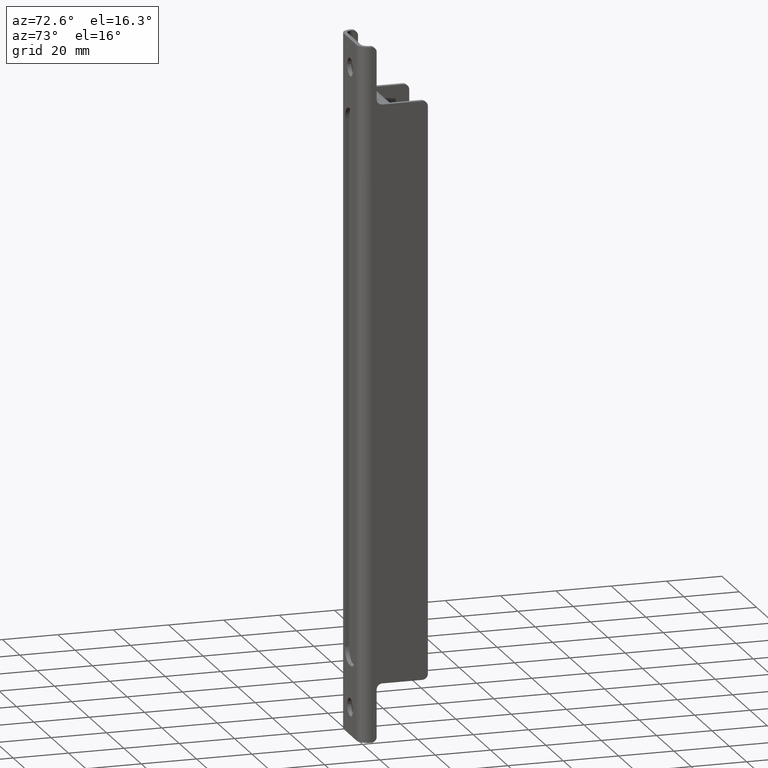
[diagram: clean part render]
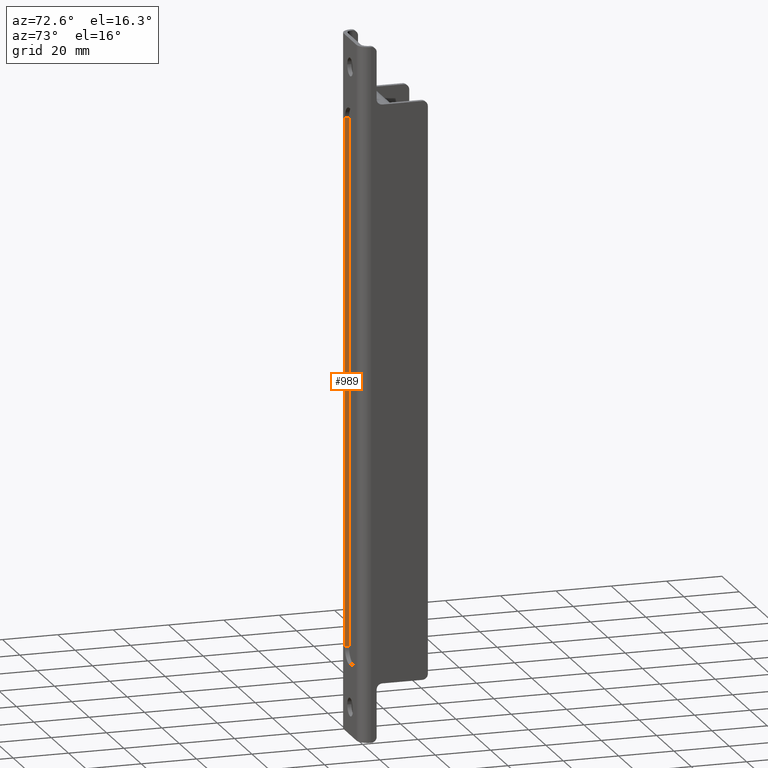
[diagram: same view with one face highlighted and labeled with its STEP entity id]
A machine part, auxiliary view. The second image highlights one B-rep face of the part: STEP entity #989.
In plain terms, the highlighted planar face has unit normal (-1, 0, -0).
Its self-contained STEP definition (entity closure, byte-faithful):
#214=ORIENTED_EDGE('',*,*,#410,.T.);
#215=ORIENTED_EDGE('',*,*,#476,.T.);
#216=ORIENTED_EDGE('',*,*,#392,.T.);
#217=ORIENTED_EDGE('',*,*,#477,.T.);
#392=EDGE_CURVE('',#536,#537,#632,.T.);
#410=EDGE_CURVE('',#555,#554,#642,.T.);
#476=EDGE_CURVE('',#554,#536,#678,.T.);
#477=EDGE_CURVE('',#537,#555,#679,.T.);
#536=VERTEX_POINT('',#1475);
#537=VERTEX_POINT('',#1476);
#554=VERTEX_POINT('',#1512);
#555=VERTEX_POINT('',#1514);
#632=LINE('',#1474,#720);
#642=LINE('',#1513,#730);
#678=LINE('',#1644,#766);
#679=LINE('',#1645,#767);
#720=VECTOR('',#1160,1000.);
#730=VECTOR('',#1190,1000.);
#766=VECTOR('',#1314,1000.);
#767=VECTOR('',#1315,1000.);
#833=EDGE_LOOP('',(#214,#215,#216,#217));
#901=FACE_BOUND('',#833,.T.);
#954=PLANE('',#1097);
#989=ADVANCED_FACE('',(#901),#954,.F.);
#1097=AXIS2_PLACEMENT_3D('',#1643,#1312,#1313);
#1160=DIRECTION('',(-8.93686180177302E-17,-1.66533453693773E-16,1.));
#1190=DIRECTION('',(8.93686180177302E-17,1.66533453693773E-16,-1.));
#1312=DIRECTION('',(-1.,4.06163832661068E-16,-8.93686180177302E-17));
#1313=DIRECTION('',(-8.93686180177302E-17,-1.66533453693773E-16,1.));
#1314=DIRECTION('',(4.06163832661068E-16,1.,1.66533453693773E-16));
#1315=DIRECTION('',(-4.06163832661068E-16,-1.,-1.66533453693773E-16));
#1474=CARTESIAN_POINT('',(-6.00000000000002,-23.,-4.00565866005999E-15));
#1475=CARTESIAN_POINT('',(-5.99999999999993,-23.,-95.0000000000001));
#1476=CARTESIAN_POINT('',(-6.00000000000005,-23.,95.0000000000001));
#1512=CARTESIAN_POINT('',(-5.99999999999993,-24.5,-95.0000000000001));
#1513=CARTESIAN_POINT('',(-5.99999999999999,-24.4999999999999,-350.));
#1514=CARTESIAN_POINT('',(-6.00000000000005,-24.5,95.0000000000001));
#1643=CARTESIAN_POINT('',(-5.99999999999998,6.24500451351651E-14,-350.));
#1644=CARTESIAN_POINT('',(-5.99999999999993,-23.,-95.0000000000001));
#1645=CARTESIAN_POINT('',(-6.00000000000005,-24.5,95.0000000000001));